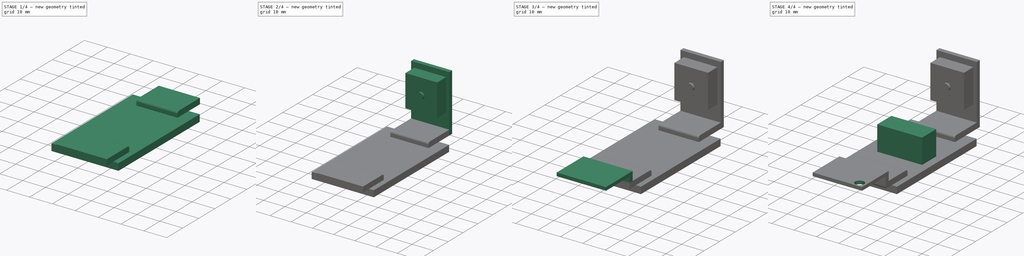
[diagram: build sequence overview — one tinted view per stage of 4, left to right]
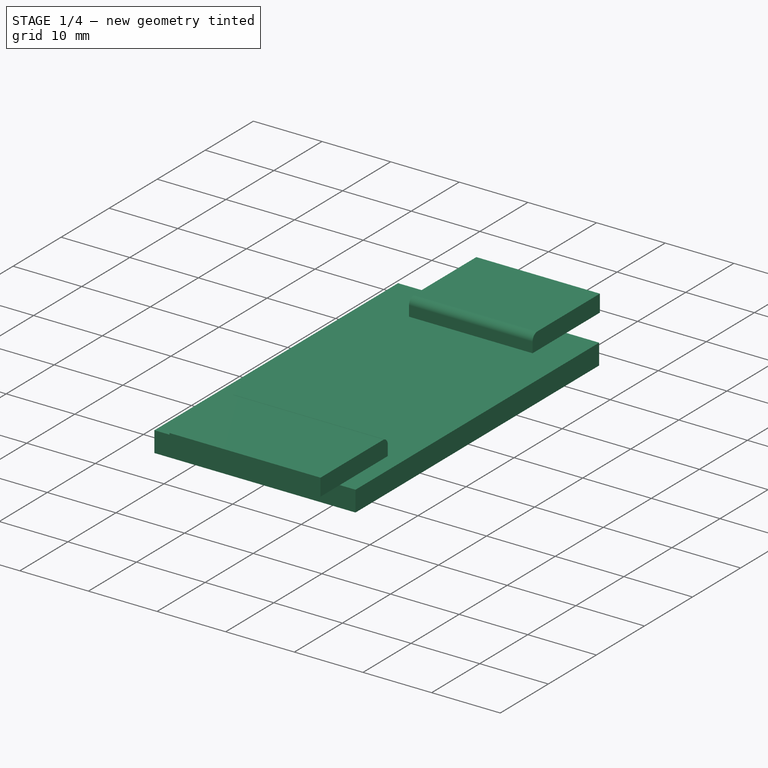
[diagram: stage 1 of 4 — iso view after this stage's code; geometry added in this stage tinted green]
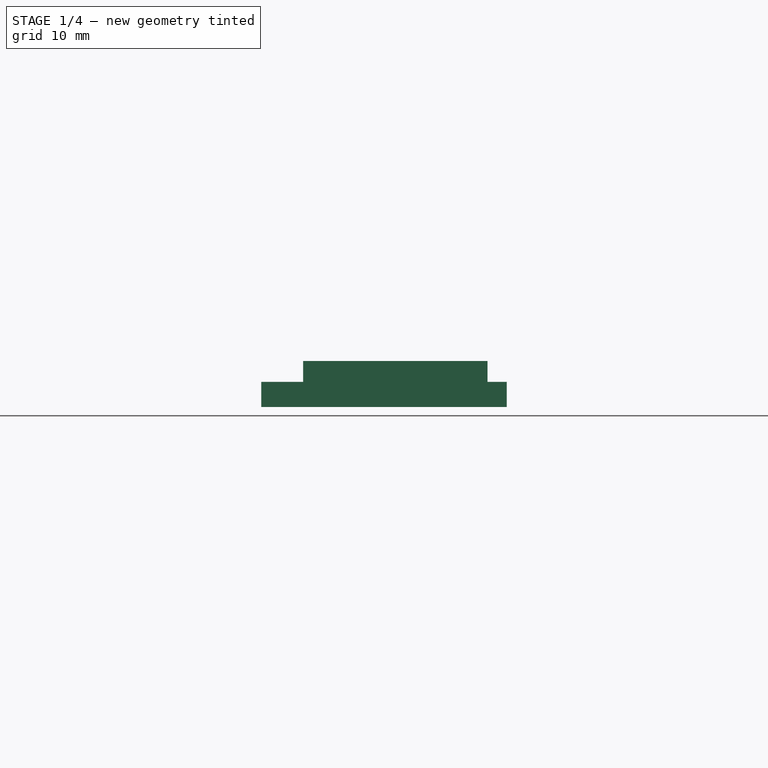
[diagram: stage 1 of 4 — front view after this stage's code; geometry added in this stage tinted green]
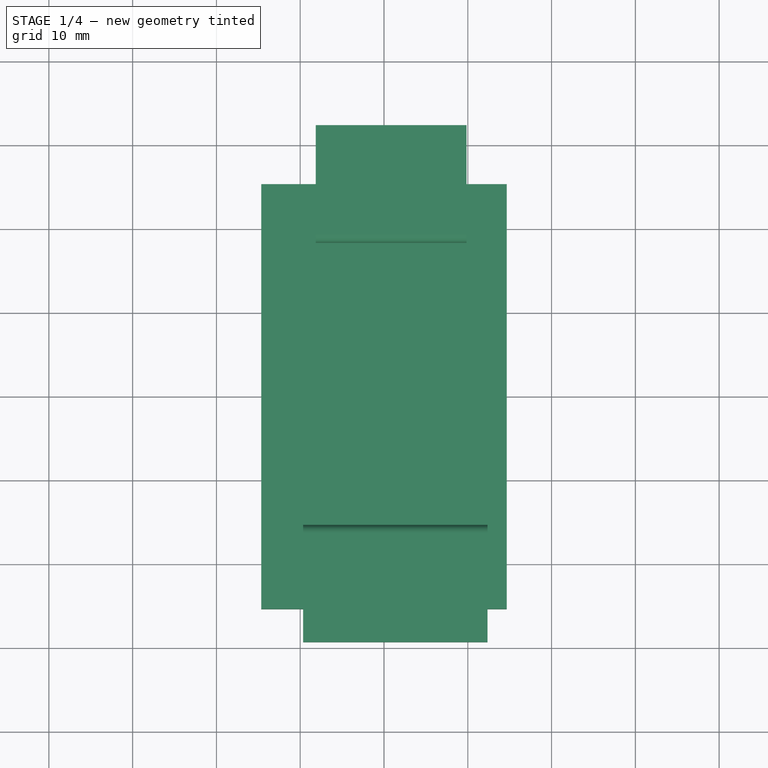
[diagram: stage 1 of 4 — top view after this stage's code; geometry added in this stage tinted green]
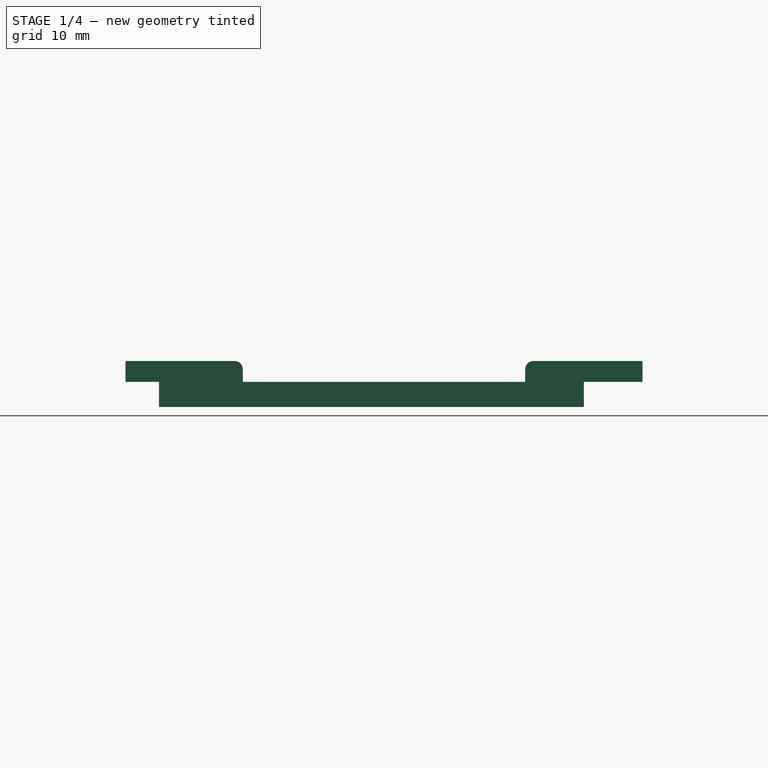
[diagram: stage 1 of 4 — right view after this stage's code; geometry added in this stage tinted green]
FCSTD DOCUMENT  (FreeCAD 0.15R4671 (Git))
Label: sensors_board
License: All rights reserved
LicenseURL: http://fr.wikipedia.org/wiki/<copyright redacted>
objects: Sketcher::SketchObject×9, PartDesign::Pad×8, Part::Fillet×2, PartDesign::Pocket×1
note: 29 computed .brp shape members not serialized (recipe doc carries the construction recipe); baked Part::Feature solids carry a one-line shape summary decoded from their .brp

FEATURE [Sketcher::SketchObject] Sketch
  sketch-geometry (4):
    g0: LineSegment StartX=-14.65 StartY=25.35 StartZ=0 EndX=14.65 EndY=25.35 EndZ=0
    g1: LineSegment StartX=14.65 StartY=25.35 StartZ=0 EndX=14.65 EndY=-25.35 EndZ=0
    g2: LineSegment StartX=14.65 StartY=-25.35 StartZ=0 EndX=-14.65 EndY=-25.35 EndZ=0
    g3: LineSegment StartX=-14.65 StartY=-25.35 StartZ=0 EndX=-14.65 EndY=25.35 EndZ=0
  constraints (11):
    c: Coincident(g0,g1)
    c: Coincident(g1,g2)
    c: Coincident(g2,g3)
    c: Coincident(g3,g0)
    c: Horizontal(g0)
    c: Horizontal(g2)
    c: Vertical(g1)
    c: Vertical(g3)
    c: Symmetric(g2,g0,g-1)
    c: Distance(g1) = 50.7
    c: Distance(g0) = 29.3
FEATURE [PartDesign::Pad] Pad
  Length = 3
  Length2 = 100
  Sketch = -> Sketch
  Type = 0
FEATURE [Sketcher::SketchObject] Sketch001  label="Pins_Sketch001"
  ExternalGeometry = -> [Pad]
  Placement = pos=(0,0,3) rot=(0,0,1;0rad)
  Support = -> Pad [Face6]
  sketch-geometry (8):
    g0: LineSegment StartX=-8.15 StartY=32.35 StartZ=0 EndX=9.85 EndY=32.35 EndZ=0
    g1: LineSegment StartX=9.85 StartY=32.35 StartZ=0 EndX=9.85 EndY=18.35 EndZ=0
    g2: LineSegment StartX=9.85 StartY=18.35 StartZ=0 EndX=-8.15 EndY=18.35 EndZ=0
    g3: LineSegment StartX=-8.15 StartY=18.35 StartZ=0 EndX=-8.15 EndY=32.35 EndZ=0
    g4: LineSegment StartX=-9.65 StartY=-15.35 StartZ=0 EndX=12.35 EndY=-15.35 EndZ=0
    g5: LineSegment StartX=12.35 StartY=-15.35 StartZ=0 EndX=12.35 EndY=-29.35 EndZ=0
    g6: LineSegment StartX=12.35 StartY=-29.35 StartZ=0 EndX=-9.65 EndY=-29.35 EndZ=0
    g7: LineSegment StartX=-9.65 StartY=-29.35 StartZ=0 EndX=-9.65 EndY=-15.35 EndZ=0
  constraints (24):
    c: Coincident(g0,g1)
    c: Coincident(g1,g2)
    c: Coincident(g2,g3)
    c: Coincident(g3,g0)
    c: Horizontal(g0)
    c: Horizontal(g2)
    c: Vertical(g1)
    c: Vertical(g3)
    c: Distance(g1) = 14
    c: Distance(g0) = 18
    c: DistanceX(g2,g-3) = -6.5
    c: DistanceY(g2,g-3) = 7
    c: Coincident(g4,g5)
    c: Coincident(g5,g6)
    c: Coincident(g6,g7)
    c: Coincident(g7,g4)
    c: Horizontal(g4)
    c: Horizontal(g6)
    c: Vertical(g5)
    c: Vertical(g7)
    c: Distance(g6) = 22
    c: Distance(g5) = 14
    c: DistanceY(g-4,g4) = 10
    c: DistanceX(g4,g-4) = -5
FEATURE [PartDesign::Pad] Pad001  label="Pin_Pad001"
  Length = 2.5
  Length2 = 100
  Sketch = -> Sketch001
  Type = 0
FEATURE [Part::Fillet] Fillet  label="Pin_Fillet"
  Base = -> Pad001
  Edges = 2 edges r=1: [Edge33,Edge40]
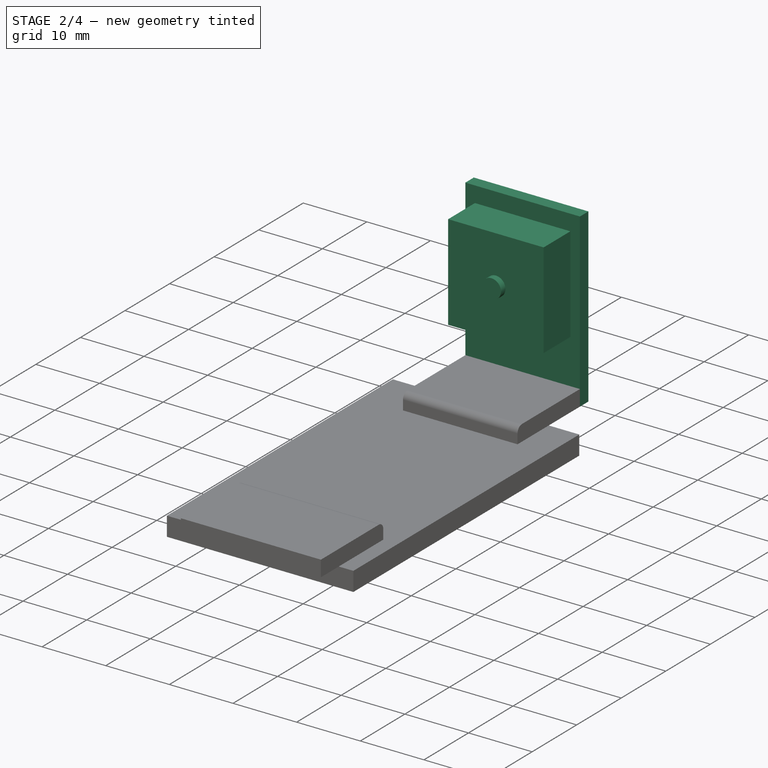
[diagram: stage 2 of 4 — iso view after this stage's code; geometry added in this stage tinted green]
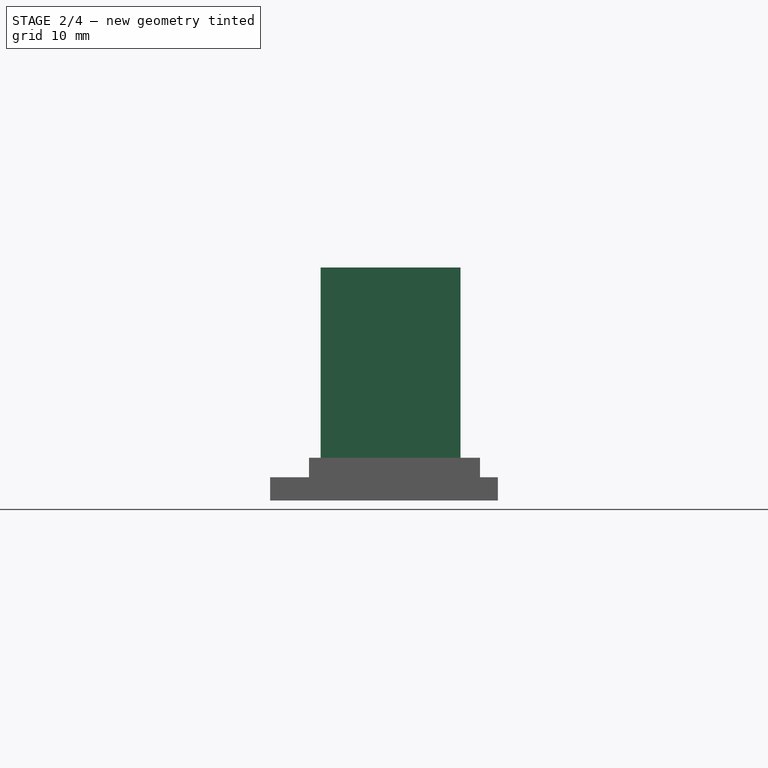
[diagram: stage 2 of 4 — front view after this stage's code; geometry added in this stage tinted green]
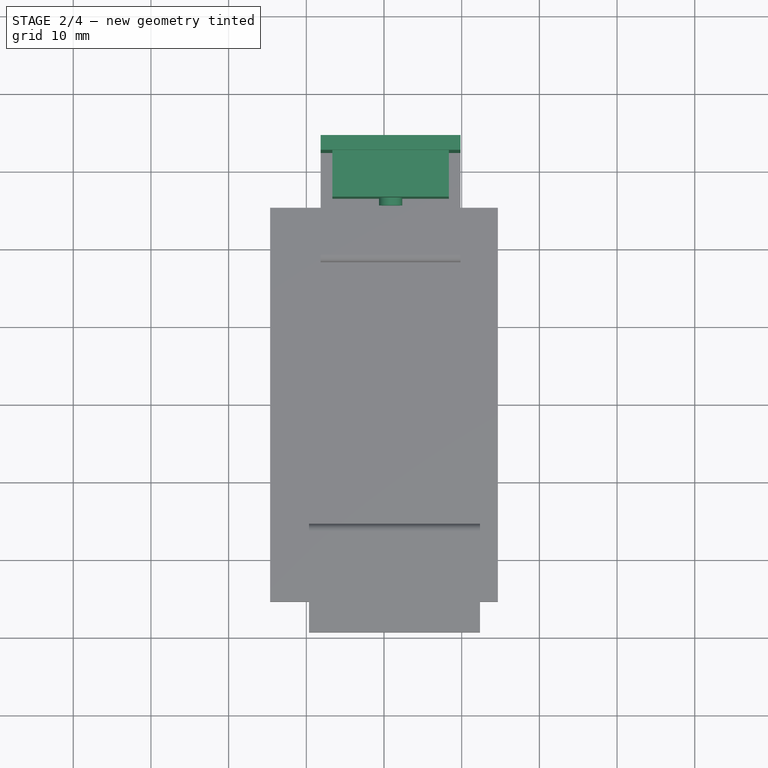
[diagram: stage 2 of 4 — top view after this stage's code; geometry added in this stage tinted green]
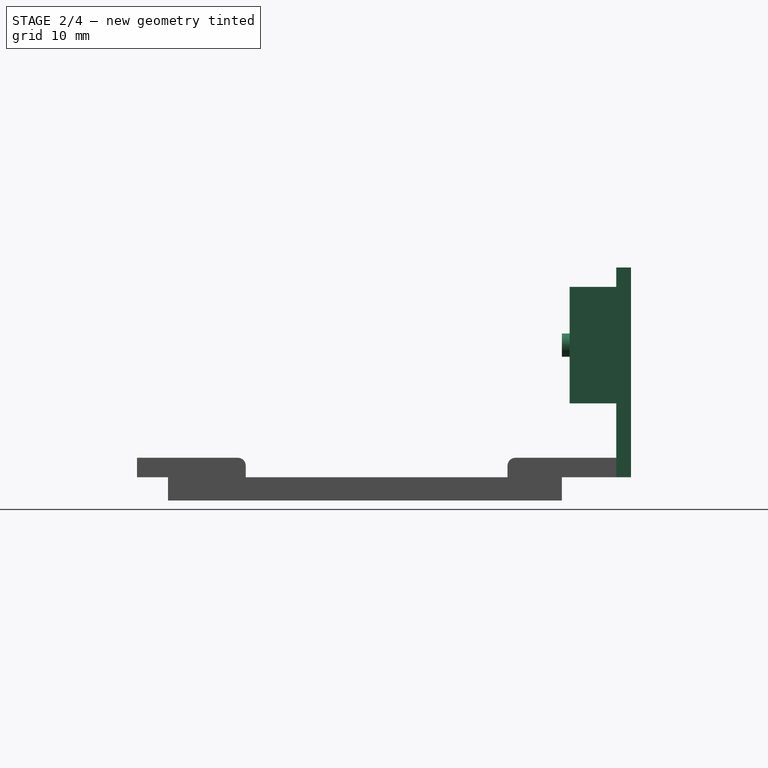
[diagram: stage 2 of 4 — right view after this stage's code; geometry added in this stage tinted green]
FEATURE [Sketcher::SketchObject] Sketch002  label="GPS_board_Sketch002"
  ExternalGeometry = -> [Fillet]
  Placement = pos=(0,32.35,0) rot=(0,0.707107,0.707107;3.14159rad)
  Support = -> Fillet [Face7]
  sketch-geometry (4):
    g0: LineSegment StartX=-9.85 StartY=30 StartZ=0 EndX=8.15 EndY=30 EndZ=0
    g1: LineSegment StartX=8.15 StartY=30 StartZ=0 EndX=8.15 EndY=3 EndZ=0
    g2: LineSegment StartX=8.15 StartY=3 StartZ=0 EndX=-9.85 EndY=3 EndZ=0
    g3: LineSegment StartX=-9.85 StartY=3 StartZ=0 EndX=-9.85 EndY=30 EndZ=0
  constraints (11):
    c: Coincident(g0,g1)
    c: Coincident(g1,g2)
    c: Coincident(g2,g3)
    c: Coincident(g3,g0)
    c: Horizontal(g0)
    c: Horizontal(g2)
    c: Vertical(g1)
    c: Vertical(g3)
    c: Distance(g1) = 27
    c: Distance(g2) = 18
    c: Coincident(g2,g-3)
FEATURE [PartDesign::Pad] Pad002  label="GPS_board_Pad002"
  Length = 1.9
  Length2 = 100
  Sketch = -> Sketch002
  Type = 0
FEATURE [Sketcher::SketchObject] Sketch003
  ExternalGeometry = -> [Pad002]
  Placement = pos=(0,32.35,0) rot=(1,0,0;1.5708rad)
  Support = -> Pad002 [Face2]
  sketch-geometry (5):
    g0: LineSegment StartX=-6.65 StartY=27.5 StartZ=0 EndX=8.35 EndY=27.5 EndZ=0
    g1: LineSegment StartX=8.35 StartY=27.5 StartZ=0 EndX=8.35 EndY=12.5 EndZ=0
    g2: LineSegment StartX=8.35 StartY=12.5 StartZ=0 EndX=-6.65 EndY=12.5 EndZ=0
    g3: LineSegment StartX=-6.65 StartY=12.5 StartZ=0 EndX=-6.65 EndY=27.5 EndZ=0
    g4: LineSegment [constr] StartX=0.85 StartY=12.5 StartZ=0 EndX=0.85 EndY=5.5 EndZ=0
  constraints (16):
    c: Coincident(g0,g1)
    c: Coincident(g1,g2)
    c: Coincident(g2,g3)
    c: Coincident(g3,g0)
    c: Horizontal(g0)
    c: Horizontal(g2)
    c: Vertical(g1)
    c: Vertical(g3)
    c: Distance(g0) = 15
    c: Distance(g1) = 15
    c: PointOnObject(g4,g2)
    c: PointOnObject(g4,g-3)
    c: Vertical(g4)
    c: Symmetric(g2,g1,g4)
    c: Symmetric(g-3,g-3,g4)
    c: Distance(g4) = 7
FEATURE [PartDesign::Pad] Pad003  label="GPSatenna_Pad003"
  Length = 6
  Length2 = 100
  Sketch = -> Sketch003
  Type = 0
FEATURE [Sketcher::SketchObject] Sketch004  label="GPS_atenna_Sketch004"
  ExternalGeometry = -> [Pad003]
  Placement = pos=(0,26.35,0) rot=(1,0,0;1.5708rad)
  Support = -> Pad003 [Face22]
  sketch-geometry (3):
    g0: Circle CenterX=0.85 CenterY=20 CenterZ=0 NormalX=0 NormalY=0 NormalZ=1 Radius=1.5
    g1: LineSegment [constr] StartX=0.85 StartY=20 StartZ=0 EndX=0.85 EndY=27.5 EndZ=0
    g2: LineSegment [constr] StartX=0.85 StartY=20 StartZ=0 EndX=-6.65 EndY=20 EndZ=0
  constraints (9):
    c: Radius(g0) = 1.5
    c: Coincident(g1,g0)
    c: PointOnObject(g1,g-3)
    c: Vertical(g1)
    c: Symmetric(g-4,g-3,g1)
    c: Coincident(g2,g0)
    c: PointOnObject(g2,g-4)
    c: Horizontal(g2)
    c: Symmetric(g-4,g-4,g2)
FEATURE [PartDesign::Pad] Pad004  label="GPS_atenna_Pad004"
  Length = 1
  Length2 = 100
  Sketch = -> Sketch004
  Type = 0
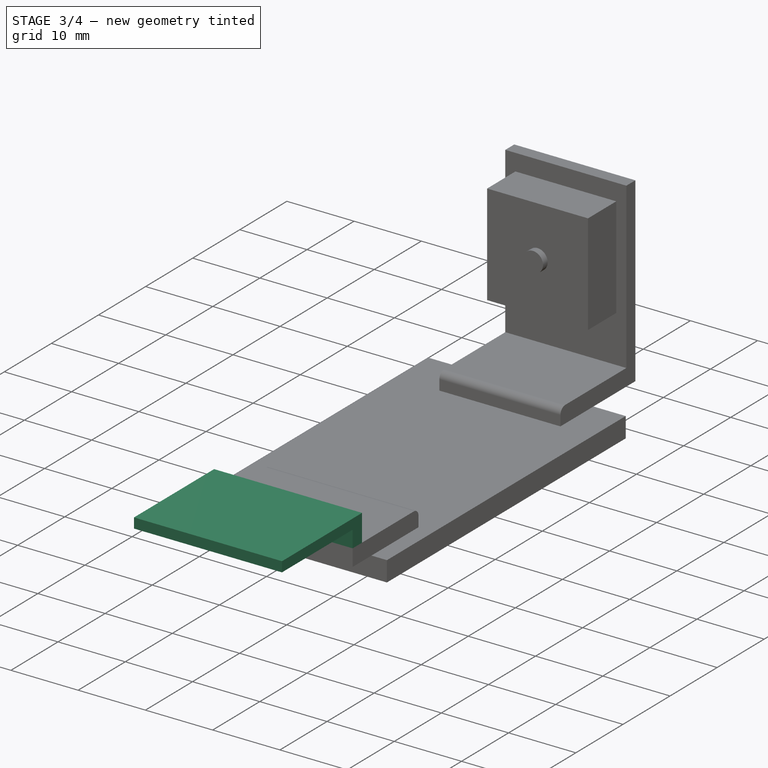
[diagram: stage 3 of 4 — iso view after this stage's code; geometry added in this stage tinted green]
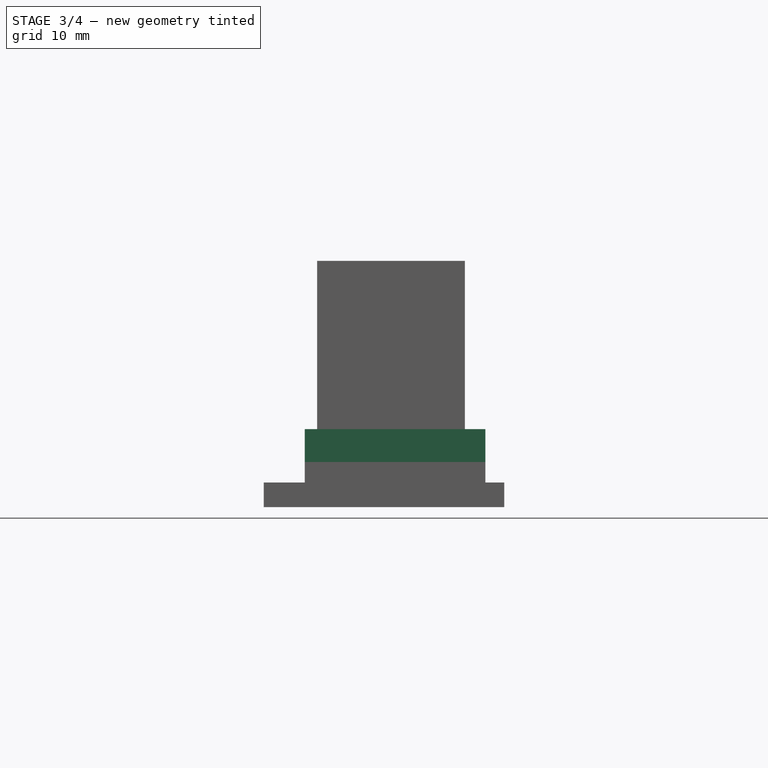
[diagram: stage 3 of 4 — front view after this stage's code; geometry added in this stage tinted green]
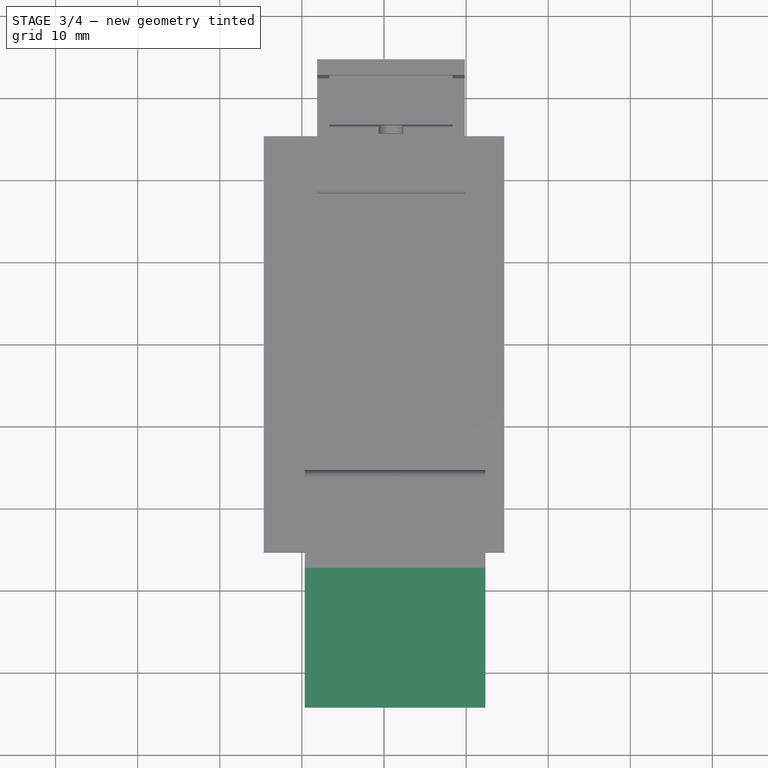
[diagram: stage 3 of 4 — top view after this stage's code; geometry added in this stage tinted green]
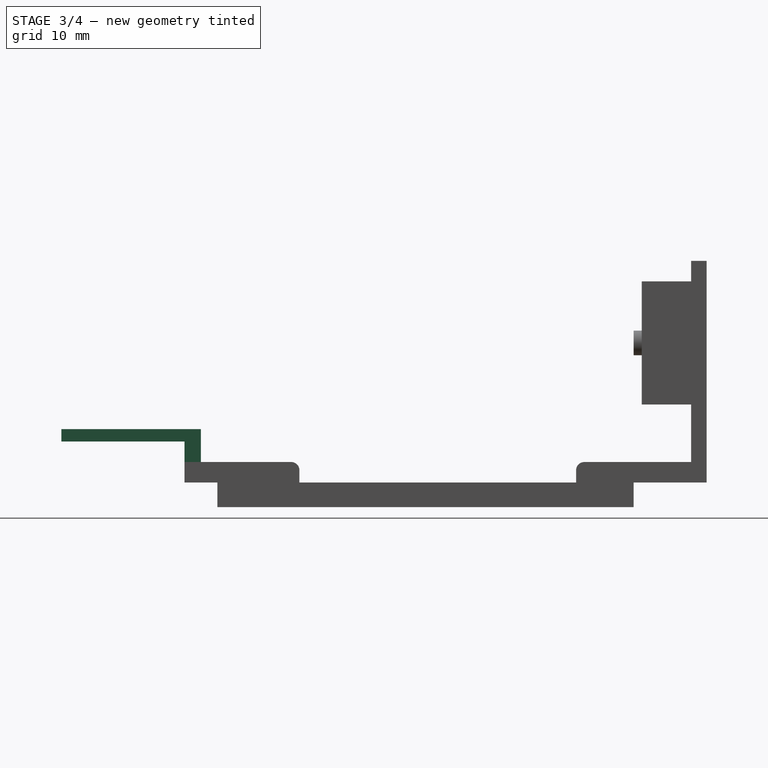
[diagram: stage 3 of 4 — right view after this stage's code; geometry added in this stage tinted green]
FEATURE [Sketcher::SketchObject] Sketch005
  ExternalGeometry = -> [Pad004]
  Placement = pos=(0,0,5.5) rot=(0,0,1;0rad)
  Support = -> Pad004 [Face26]
  sketch-geometry (4):
    g0: LineSegment StartX=-9.65 StartY=-27.35 StartZ=0 EndX=12.35 EndY=-27.35 EndZ=0
    g1: LineSegment StartX=12.35 StartY=-27.35 StartZ=0 EndX=12.35 EndY=-29.35 EndZ=0
    g2: LineSegment StartX=12.35 StartY=-29.35 StartZ=0 EndX=-9.65 EndY=-29.35 EndZ=0
    g3: LineSegment StartX=-9.65 StartY=-29.35 StartZ=0 EndX=-9.65 EndY=-27.35 EndZ=0
  constraints (11):
    c: Coincident(g0,g1)
    c: Coincident(g1,g2)
    c: Coincident(g2,g3)
    c: Coincident(g3,g0)
    c: Horizontal(g0)
    c: Horizontal(g2)
    c: Vertical(g1)
    c: Vertical(g3)
    c: Distance(g3) = 2
    c: Coincident(g2,g-3)
    c: Coincident(g1,g-3)
FEATURE [PartDesign::Pad] Pad005
  Length = 2.5
  Length2 = 100
  Sketch = -> Sketch005
  Type = 0
FEATURE [Sketcher::SketchObject] Sketch006  label="Compas_Sketch006"
  ExternalGeometry = -> [Pad005]
  Placement = pos=(0,0,8) rot=(0,0,1;0rad)
  Support = -> Pad005 [Face27]
  sketch-geometry (4):
    g0: LineSegment StartX=-9.65 StartY=-27.35 StartZ=0 EndX=12.35 EndY=-27.35 EndZ=0
    g1: LineSegment StartX=12.35 StartY=-27.35 StartZ=0 EndX=12.35 EndY=-44.35 EndZ=0
    g2: LineSegment StartX=12.35 StartY=-44.35 StartZ=0 EndX=-9.65 EndY=-44.35 EndZ=0
    g3: LineSegment StartX=-9.65 StartY=-44.35 StartZ=0 EndX=-9.65 EndY=-27.35 EndZ=0
  constraints (11):
    c: Coincident(g0,g1)
    c: Coincident(g1,g2)
    c: Coincident(g2,g3)
    c: Coincident(g3,g0)
    c: Horizontal(g0)
    c: Horizontal(g2)
    c: Vertical(g1)
    c: Vertical(g3)
    c: Distance(g3) = 17
    c: Coincident(g0,g-3)
    c: Coincident(g0,g-3)
FEATURE [PartDesign::Pad] Pad006
  Length = 1.5
  Length2 = 100
  Sketch = -> Sketch006
  Type = 0
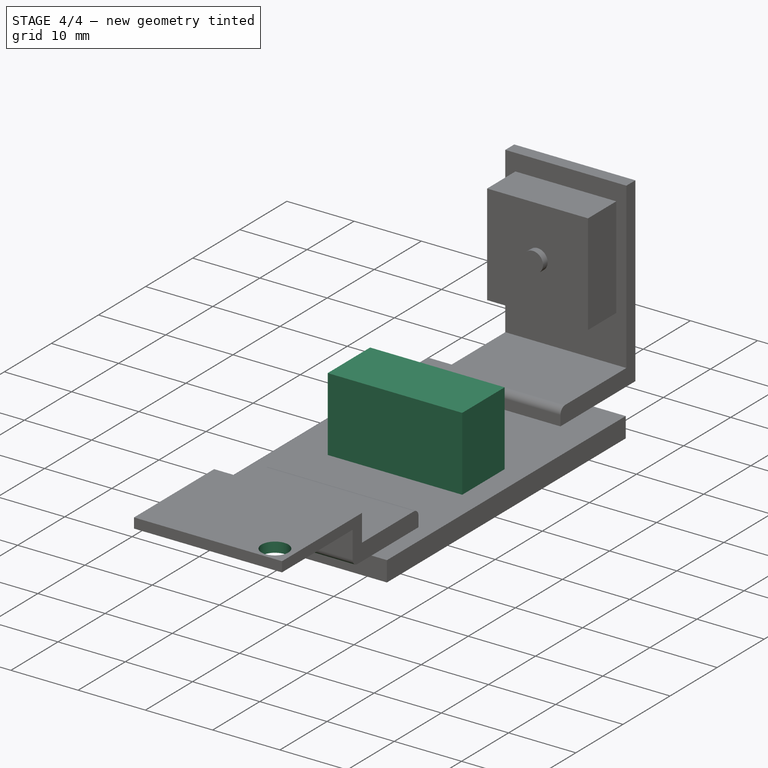
[diagram: stage 4 of 4 — iso view after this stage's code; geometry added in this stage tinted green]
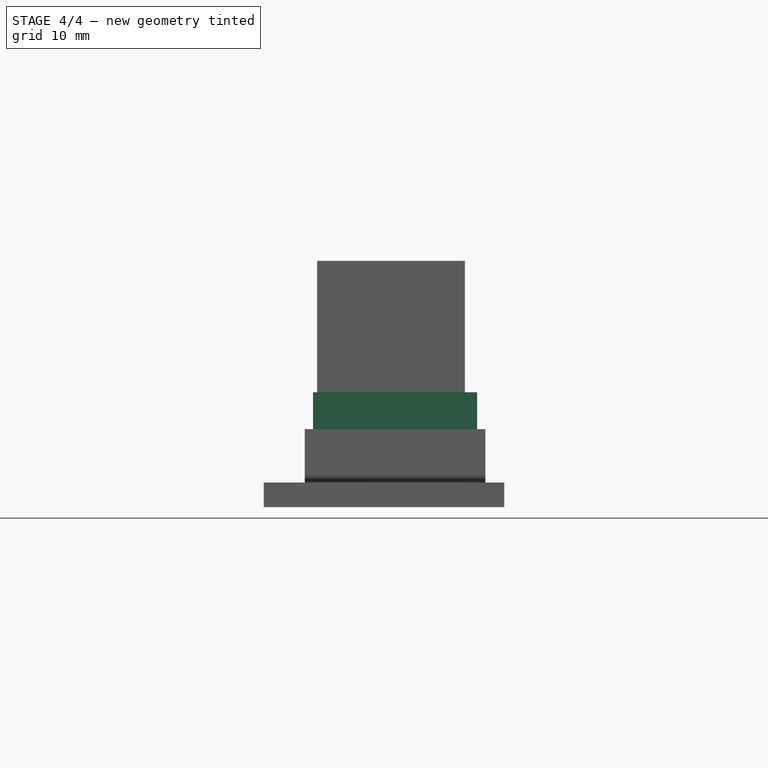
[diagram: stage 4 of 4 — front view after this stage's code; geometry added in this stage tinted green]
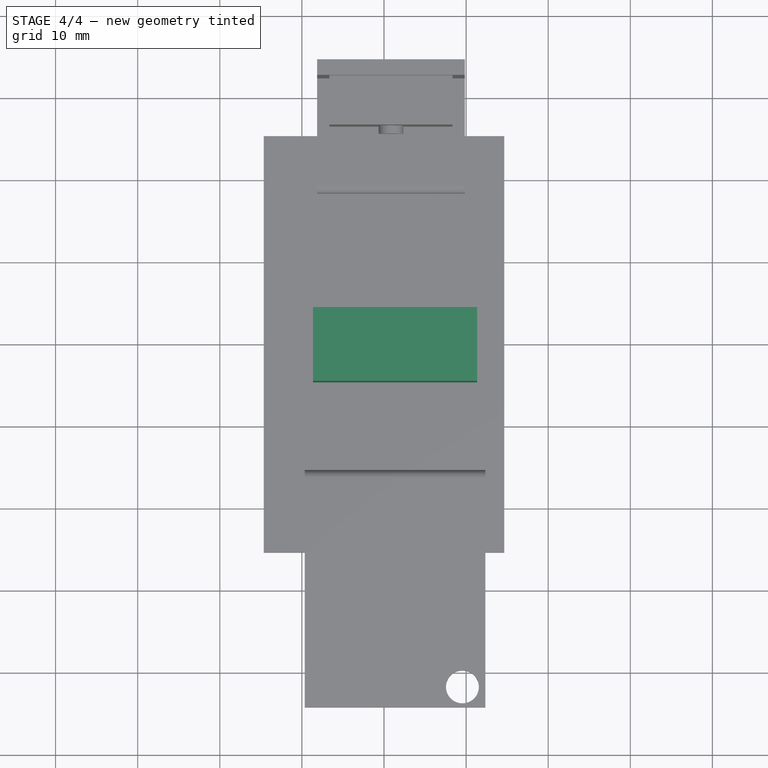
[diagram: stage 4 of 4 — top view after this stage's code; geometry added in this stage tinted green]
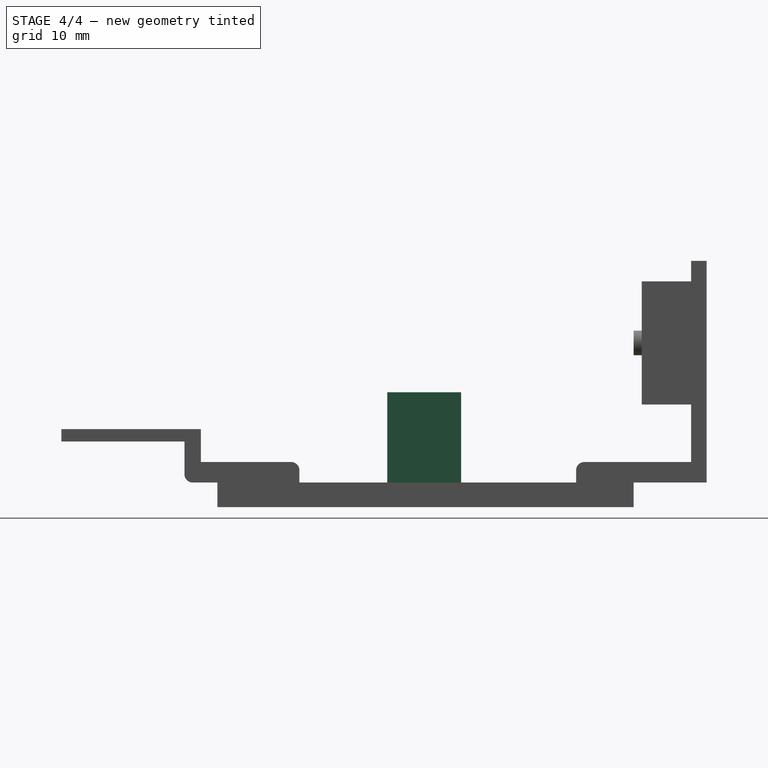
[diagram: stage 4 of 4 — right view after this stage's code; geometry added in this stage tinted green]
FEATURE [Sketcher::SketchObject] Sketch007
  ExternalGeometry = -> [Pad006]
  Placement = pos=(0,0,9.5) rot=(0,0,1;0rad)
  Support = -> Pad006 [Face29]
  sketch-geometry (1):
    g0: Circle CenterX=9.55 CenterY=-41.85 CenterZ=0 NormalX=0 NormalY=0 NormalZ=1 Radius=2
  constraints (3):
    c: Radius(g0) = 2
    c: DistanceX(g0,g-3) = 2.8
    c: DistanceY(g0,g-3) = -2.5
FEATURE [PartDesign::Pocket] Pocket
  Length = 5
  Sketch = -> Sketch007
  Type = 0
FEATURE [Sketcher::SketchObject] Sketch008
  ExternalGeometry = -> [Pocket]
  Placement = pos=(0,0,3) rot=(0,0,1;0rad)
  Support = -> Pocket [Face10]
  sketch-geometry (4):
    g0: LineSegment StartX=-8.65 StartY=4.35 StartZ=0 EndX=11.35 EndY=4.35 EndZ=0
    g1: LineSegment StartX=11.35 StartY=4.35 StartZ=0 EndX=11.35 EndY=-4.65 EndZ=0
    g2: LineSegment StartX=11.35 StartY=-4.65 StartZ=0 EndX=-8.65 EndY=-4.65 EndZ=0
    g3: LineSegment StartX=-8.65 StartY=-4.65 StartZ=0 EndX=-8.65 EndY=4.35 EndZ=0
  constraints (12):
    c: Coincident(g0,g1)
    c: Coincident(g1,g2)
    c: Coincident(g2,g3)
    c: Coincident(g3,g0)
    c: Horizontal(g0)
    c: Horizontal(g2)
    c: Vertical(g1)
    c: Vertical(g3)
    c: Distance(g0) = 20
    c: Distance(g3) = 9
    c: DistanceY(g0,g-3) = 21
    c: DistanceX(g0,g-3) = -6
FEATURE [PartDesign::Pad] Pad007
  Length = 11
  Length2 = 100
  Sketch = -> Sketch008
  Type = 0
FEATURE [Part::Fillet] Fillet001
  Base = -> Pad007
  Edges = 1 edges r=1: [Edge93]
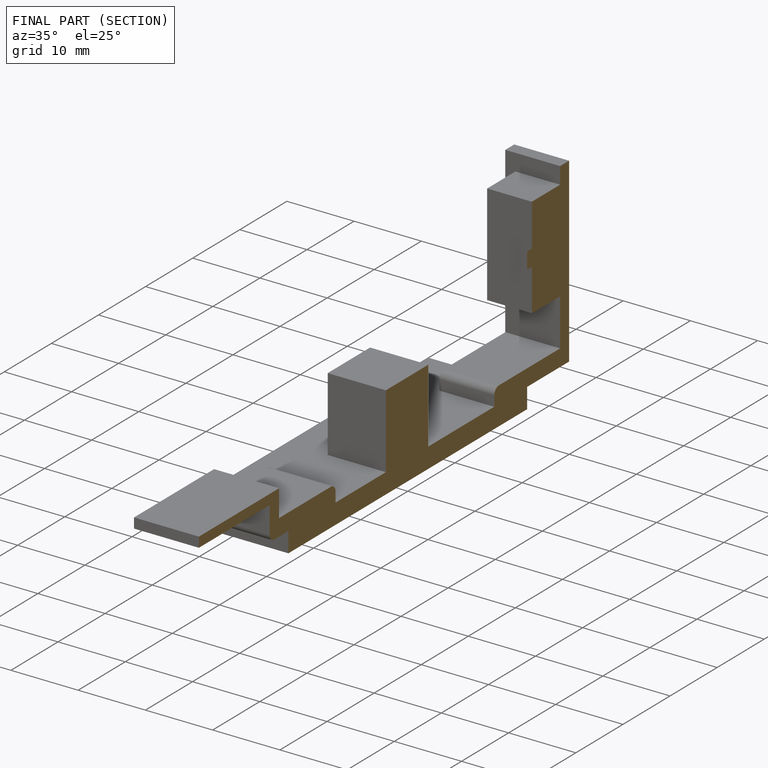
[diagram: finished part — half-section view (interior)]
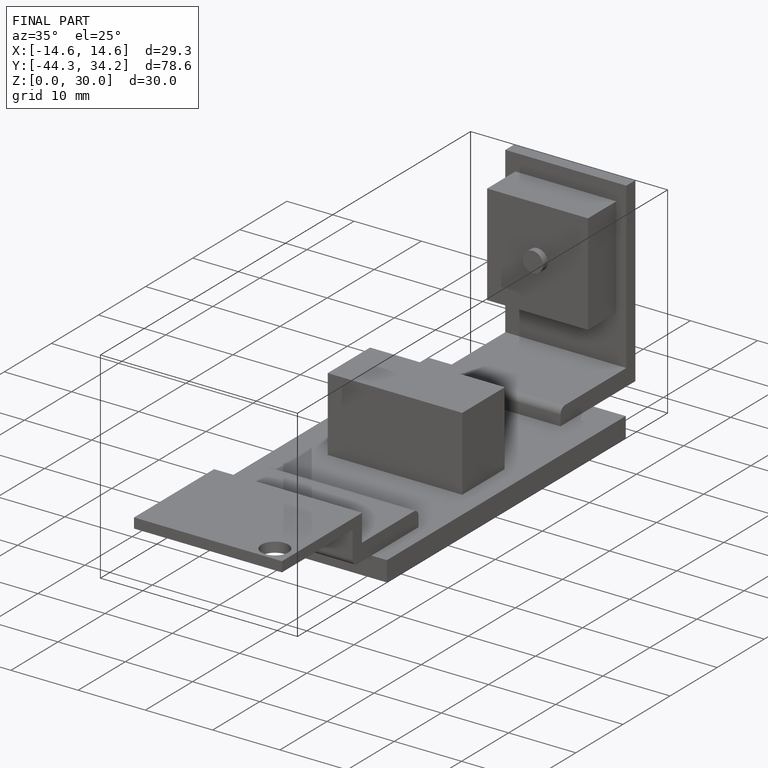
[diagram: finished part — iso view with bounding-box wireframe]
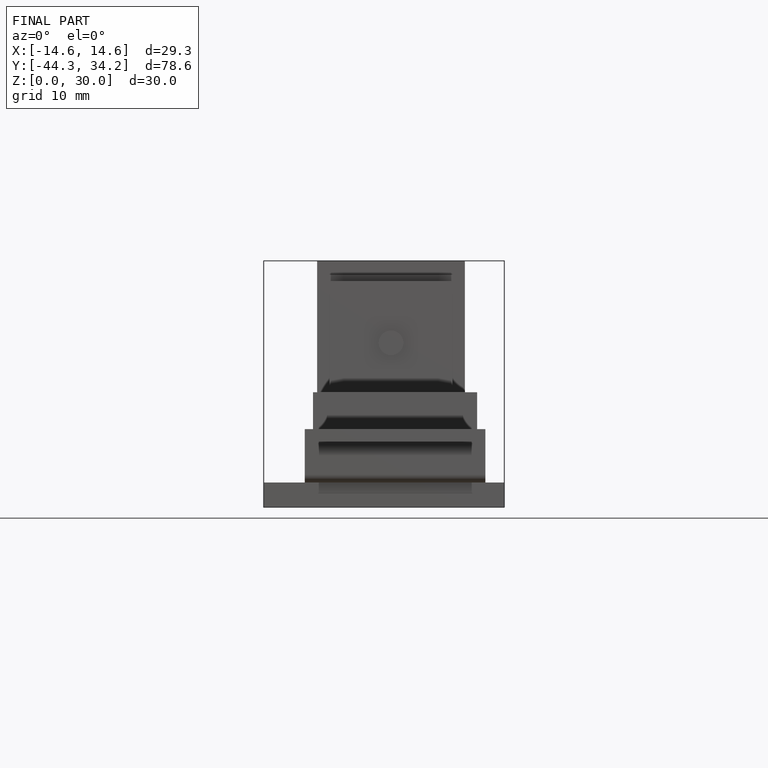
[diagram: finished part — front view with bounding-box wireframe]
